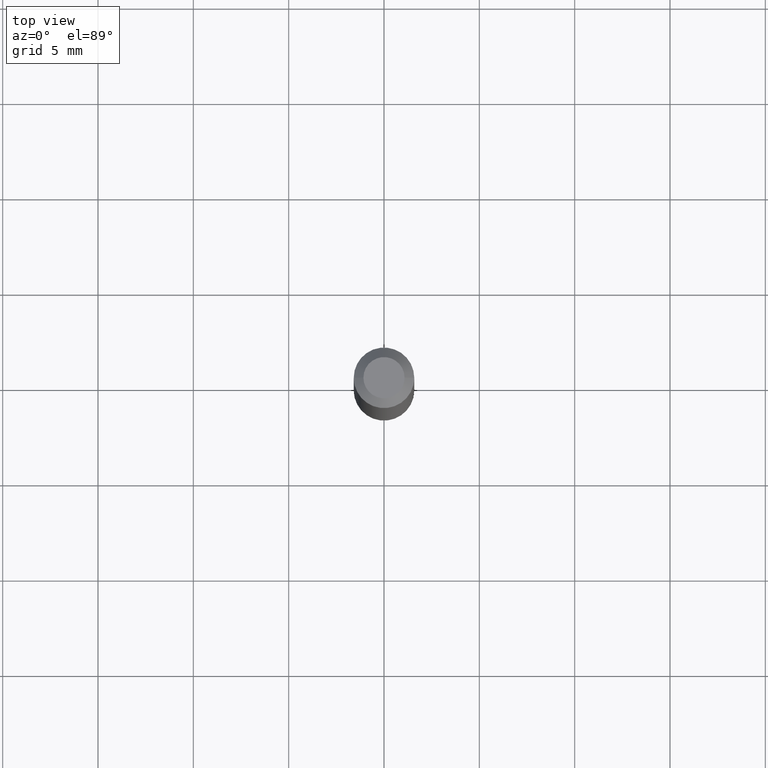
[diagram: clean part render]
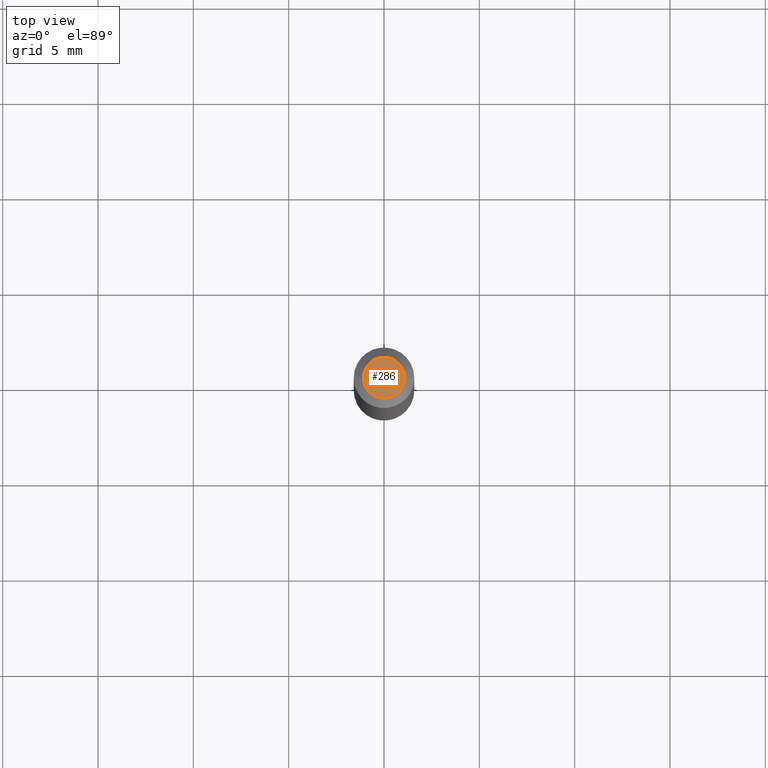
[diagram: same view with one face highlighted and labeled with its STEP entity id]
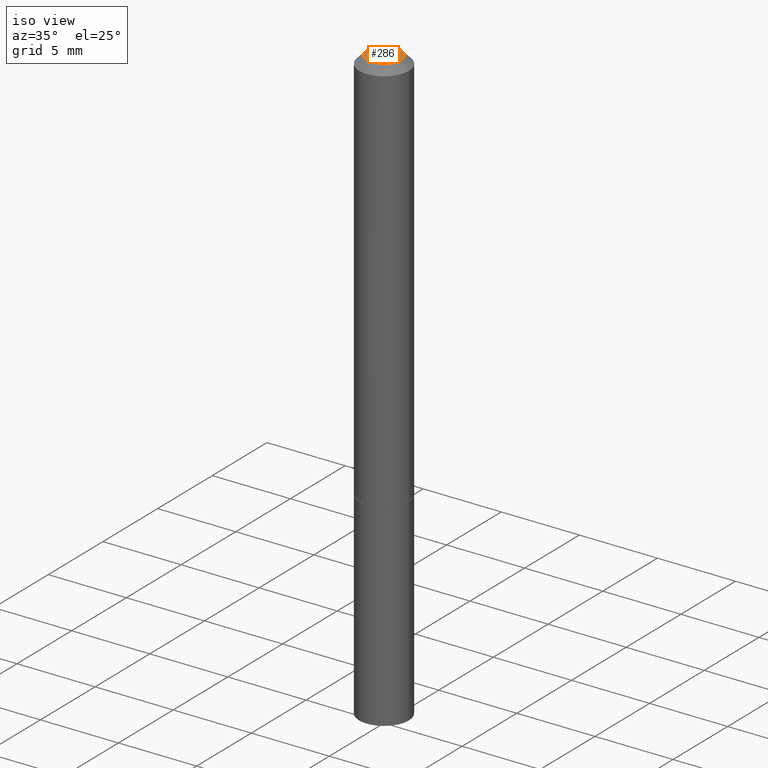
[diagram: same view with one face highlighted and labeled with its STEP entity id]
A machine part, top view. The second image highlights one B-rep face of the part: STEP entity #286.
A second angle (iso view) of the same face is appended — the face is thin or edge-on in the first view.
In plain terms, the highlighted planar face has unit normal (0, -0, -1).
Its self-contained STEP definition (entity closure, byte-faithful):
#4 = DIRECTION ( 'NONE',  ( 2.438088387897960049E-29, -3.491481338843145188E-15, -1.000000000000000000 ) ) ;
#7 = CIRCLE ( 'NONE', #83, 0.04249999999999985734 ) ;
#33 = CARTESIAN_POINT ( 'NONE',  ( -0.04249999999999985734, 3.316907271900963770E-16, -2.561107494060466786E-17 ) ) ;
#59 = CARTESIAN_POINT ( 'NONE',  ( 2.967759138016652702E-16, 0.04249999999999985734, -1.611934943711344082E-16 ) ) ;
#78 = EDGE_LOOP ( 'NONE', ( #320, #105 ) ) ;
#83 = AXIS2_PLACEMENT_3D ( 'NONE', #275, #141, #194 ) ;
#105 = ORIENTED_EDGE ( 'NONE', *, *, #337, .T. ) ;
#122 = DIRECTION ( 'NONE',  ( -1.000000000000000000, 6.982962677686265922E-15, -4.876176775795935793E-29 ) ) ;
#125 = CARTESIAN_POINT ( 'NONE',  ( 6.263108486011318528E-46, -8.942059022282683748E-32, -2.561107494060246767E-17 ) ) ;
#139 = EDGE_CURVE ( 'NONE', #235, #294, #7, .T. ) ;
#141 = DIRECTION ( 'NONE',  ( -2.445468806185136597E-29, 3.491481338843145583E-15, 1.000000000000000000 ) ) ;
#147 = FACE_OUTER_BOUND ( 'NONE', #78, .T. ) ;
#150 = CARTESIAN_POINT ( 'NONE',  ( 0.04249999999999985734, -3.950909582714359557E-16, -2.561107494060004870E-17 ) ) ;
#181 = AXIS2_PLACEMENT_3D ( 'NONE', #59, #4, #122 ) ;
#194 = DIRECTION ( 'NONE',  ( 1.000000000000000000, -6.982962677686265922E-15, 4.879498284297460242E-29 ) ) ;
#200 = PLANE ( 'NONE',  #181 ) ;
#202 = DIRECTION ( 'NONE',  ( 1.000000000000000000, -6.982962677686265922E-15, 4.879498284297460242E-29 ) ) ;
#203 = DIRECTION ( 'NONE',  ( -2.445468806185136597E-29, 3.491481338843145583E-15, 1.000000000000000000 ) ) ;
#224 = CIRCLE ( 'NONE', #288, 0.04249999999999985734 ) ;
#235 = VERTEX_POINT ( 'NONE', #33 ) ;
#275 = CARTESIAN_POINT ( 'NONE',  ( 6.263108486011318528E-46, -8.942059022282683748E-32, -2.561107494060246767E-17 ) ) ;
#286 = ADVANCED_FACE ( 'NONE', ( #147 ), #200, .F. ) ;
#288 = AXIS2_PLACEMENT_3D ( 'NONE', #125, #203, #202 ) ;
#294 = VERTEX_POINT ( 'NONE', #150 ) ;
#320 = ORIENTED_EDGE ( 'NONE', *, *, #139, .T. ) ;
#337 = EDGE_CURVE ( 'NONE', #294, #235, #224, .T. ) ;